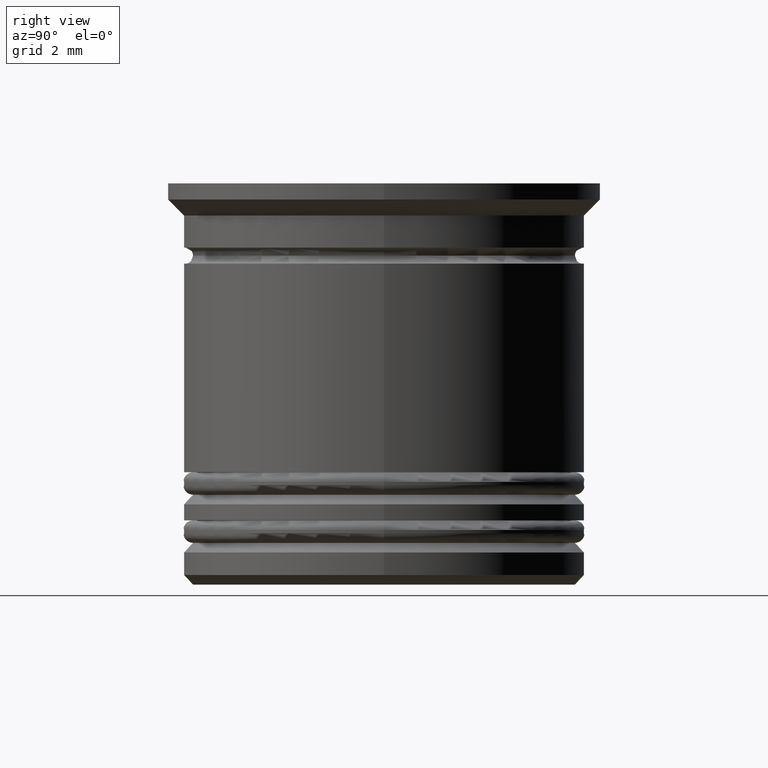
[diagram: clean part render]
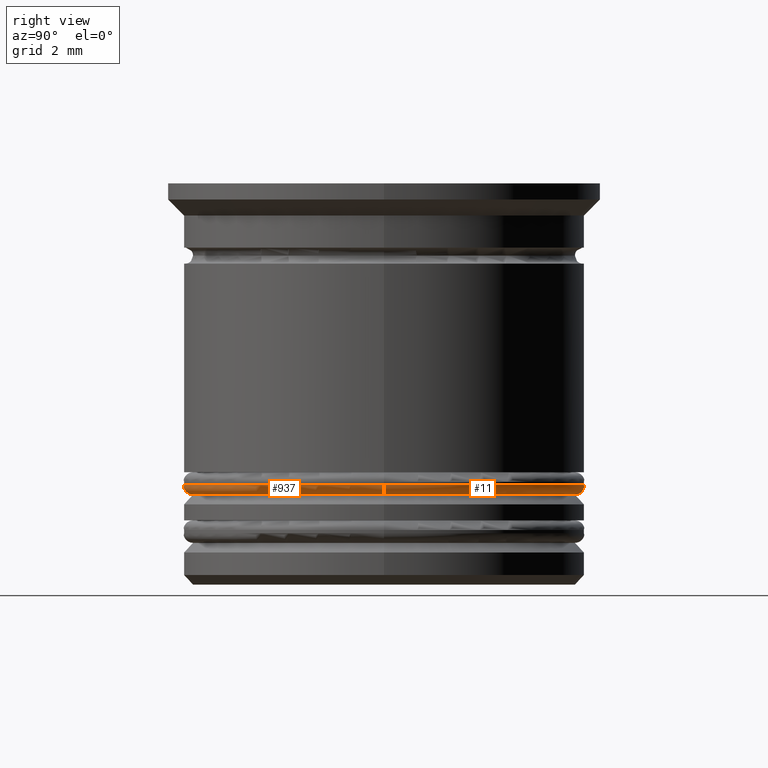
[diagram: same view with one multi-face feature highlighted, each face labeled with its STEP entity id]
A machine part, right view. The highlighted faces form ONE feature: a constant-radius fillet chain: 2 tangent blend faces with common blend radius 0.3 mm. The faces share edges in the B-rep.
Their STEP definitions:
[1] entity #937 (Torus):
#81 = AXIS2_PLACEMENT_3D ( 'NONE', #776, #933, #150 ) ;
#150 = DIRECTION ( 'NONE',  ( 0.000000000000000000, 0.000000000000000000, -1.000000000000000000 ) ) ;
#284 = CARTESIAN_POINT ( 'NONE',  ( 0.000000000000000000, 0.000000000000000000, -9.700000000000006395 ) ) ;
#290 = EDGE_CURVE ( 'NONE', #1875, #1750, #544, .T. ) ;
#307 = DIRECTION ( 'NONE',  ( -1.000000000000000000, 1.224646799147353207E-16, 0.000000000000000000 ) ) ;
#360 = CIRCLE ( 'NONE', #81, 0.2999999999999999334 ) ;
#417 = ORIENTED_EDGE ( 'NONE', *, *, #1360, .F. ) ;
#429 = CARTESIAN_POINT ( 'NONE',  ( -5.950000000000000178, 7.470345474798855279E-16, -9.700000000000006395 ) ) ;
#457 = AXIS2_PLACEMENT_3D ( 'NONE', #284, #1670, #1701 ) ;
#481 = CIRCLE ( 'NONE', #518, 6.250000000000000000 ) ;
#518 = AXIS2_PLACEMENT_3D ( 'NONE', #735, #565, #1339 ) ;
#544 = CIRCLE ( 'NONE', #1344, 0.2999999999999999334 ) ;
#565 = DIRECTION ( 'NONE',  ( 0.000000000000000000, 0.000000000000000000, 1.000000000000000000 ) ) ;
#625 = CARTESIAN_POINT ( 'NONE',  ( 0.000000000000000000, 0.000000000000000000, -9.400000000000009237 ) ) ;
#665 = VERTEX_POINT ( 'NONE', #1457 ) ;
#735 = CARTESIAN_POINT ( 'NONE',  ( 0.000000000000000000, 0.000000000000000000, -9.400000000000009237 ) ) ;
#751 = DIRECTION ( 'NONE',  ( 1.224646799147353207E-16, 1.000000000000000000, -0.000000000000000000 ) ) ;
#776 = CARTESIAN_POINT ( 'NONE',  ( 5.950000000000000178, 0.000000000000000000, -9.400000000000009237 ) ) ;
#916 = EDGE_CURVE ( 'NONE', #1750, #1010, #481, .T. ) ;
#933 = DIRECTION ( 'NONE',  ( 0.000000000000000000, -1.000000000000000000, 0.000000000000000000 ) ) ;
#937 = ADVANCED_FACE ( 'NONE', ( #1661 ), #1874, .T. ) ;
#941 = DIRECTION ( 'NONE',  ( 0.000000000000000000, 0.000000000000000000, 1.000000000000000000 ) ) ;
#1010 = VERTEX_POINT ( 'NONE', #1878 ) ;
#1081 = ORIENTED_EDGE ( 'NONE', *, *, #916, .F. ) ;
#1091 = DIRECTION ( 'NONE',  ( 1.000000000000000000, 0.000000000000000000, 0.000000000000000000 ) ) ;
#1155 = EDGE_LOOP ( 'NONE', ( #1859, #417, #1730, #1081 ) ) ;
#1339 = DIRECTION ( 'NONE',  ( 1.000000000000000000, 0.000000000000000000, 0.000000000000000000 ) ) ;
#1344 = AXIS2_PLACEMENT_3D ( 'NONE', #1976, #751, #307 ) ;
#1360 = EDGE_CURVE ( 'NONE', #665, #1875, #1583, .T. ) ;
#1410 = EDGE_CURVE ( 'NONE', #665, #1010, #360, .T. ) ;
#1457 = CARTESIAN_POINT ( 'NONE',  ( 5.950000000000000178, 0.000000000000000000, -9.700000000000006395 ) ) ;
#1583 = CIRCLE ( 'NONE', #457, 5.950000000000000178 ) ;
#1661 = FACE_OUTER_BOUND ( 'NONE', #1155, .T. ) ;
#1670 = DIRECTION ( 'NONE',  ( -0.000000000000000000, -0.000000000000000000, -1.000000000000000000 ) ) ;
#1680 = AXIS2_PLACEMENT_3D ( 'NONE', #625, #941, #1091 ) ;
#1701 = DIRECTION ( 'NONE',  ( 1.000000000000000000, 0.000000000000000000, 0.000000000000000000 ) ) ;
#1730 = ORIENTED_EDGE ( 'NONE', *, *, #1410, .T. ) ;
#1750 = VERTEX_POINT ( 'NONE', #1802 ) ;
#1802 = CARTESIAN_POINT ( 'NONE',  ( -6.250000000000000000, 7.654042494670957606E-16, -9.400000000000009237 ) ) ;
#1859 = ORIENTED_EDGE ( 'NONE', *, *, #290, .F. ) ;
#1874 = TOROIDAL_SURFACE ( 'NONE', #1680, 5.950000000000000178, 0.2999999999999999889 ) ;
#1875 = VERTEX_POINT ( 'NONE', #429 ) ;
#1878 = CARTESIAN_POINT ( 'NONE',  ( 6.250000000000000000, 0.000000000000000000, -9.400000000000009237 ) ) ;
#1976 = CARTESIAN_POINT ( 'NONE',  ( -5.950000000000000178, 7.286648454926751965E-16, -9.400000000000009237 ) ) ;
[2] entity #11 (Torus):
#11 = ADVANCED_FACE ( 'NONE', ( #1979 ), #1572, .T. ) ;
#66 = ORIENTED_EDGE ( 'NONE', *, *, #290, .T. ) ;
#81 = AXIS2_PLACEMENT_3D ( 'NONE', #776, #933, #150 ) ;
#150 = DIRECTION ( 'NONE',  ( 0.000000000000000000, 0.000000000000000000, -1.000000000000000000 ) ) ;
#153 = DIRECTION ( 'NONE',  ( 1.000000000000000000, 0.000000000000000000, 0.000000000000000000 ) ) ;
#290 = EDGE_CURVE ( 'NONE', #1875, #1750, #544, .T. ) ;
#307 = DIRECTION ( 'NONE',  ( -1.000000000000000000, 1.224646799147353207E-16, 0.000000000000000000 ) ) ;
#310 = DIRECTION ( 'NONE',  ( -0.000000000000000000, -0.000000000000000000, -1.000000000000000000 ) ) ;
#360 = CIRCLE ( 'NONE', #81, 0.2999999999999999334 ) ;
#398 = DIRECTION ( 'NONE',  ( 0.000000000000000000, 0.000000000000000000, 1.000000000000000000 ) ) ;
#429 = CARTESIAN_POINT ( 'NONE',  ( -5.950000000000000178, 7.470345474798855279E-16, -9.700000000000006395 ) ) ;
#450 = CIRCLE ( 'NONE', #1712, 5.950000000000000178 ) ;
#544 = CIRCLE ( 'NONE', #1344, 0.2999999999999999334 ) ;
#665 = VERTEX_POINT ( 'NONE', #1457 ) ;
#687 = EDGE_CURVE ( 'NONE', #1010, #1750, #1743, .T. ) ;
#704 = DIRECTION ( 'NONE',  ( 1.000000000000000000, 0.000000000000000000, 0.000000000000000000 ) ) ;
#751 = DIRECTION ( 'NONE',  ( 1.224646799147353207E-16, 1.000000000000000000, -0.000000000000000000 ) ) ;
#776 = CARTESIAN_POINT ( 'NONE',  ( 5.950000000000000178, 0.000000000000000000, -9.400000000000009237 ) ) ;
#908 = CARTESIAN_POINT ( 'NONE',  ( 0.000000000000000000, 0.000000000000000000, -9.400000000000009237 ) ) ;
#927 = DIRECTION ( 'NONE',  ( 0.000000000000000000, 0.000000000000000000, 1.000000000000000000 ) ) ;
#933 = DIRECTION ( 'NONE',  ( 0.000000000000000000, -1.000000000000000000, 0.000000000000000000 ) ) ;
#1010 = VERTEX_POINT ( 'NONE', #1878 ) ;
#1042 = DIRECTION ( 'NONE',  ( 1.000000000000000000, 0.000000000000000000, 0.000000000000000000 ) ) ;
#1051 = EDGE_LOOP ( 'NONE', ( #1127, #66, #1059, #1648 ) ) ;
#1059 = ORIENTED_EDGE ( 'NONE', *, *, #687, .F. ) ;
#1127 = ORIENTED_EDGE ( 'NONE', *, *, #1935, .F. ) ;
#1344 = AXIS2_PLACEMENT_3D ( 'NONE', #1976, #751, #307 ) ;
#1410 = EDGE_CURVE ( 'NONE', #665, #1010, #360, .T. ) ;
#1457 = CARTESIAN_POINT ( 'NONE',  ( 5.950000000000000178, 0.000000000000000000, -9.700000000000006395 ) ) ;
#1506 = AXIS2_PLACEMENT_3D ( 'NONE', #908, #927, #153 ) ;
#1572 = TOROIDAL_SURFACE ( 'NONE', #1506, 5.950000000000000178, 0.2999999999999999889 ) ;
#1648 = ORIENTED_EDGE ( 'NONE', *, *, #1410, .F. ) ;
#1666 = CARTESIAN_POINT ( 'NONE',  ( 0.000000000000000000, 0.000000000000000000, -9.700000000000006395 ) ) ;
#1712 = AXIS2_PLACEMENT_3D ( 'NONE', #1666, #310, #1042 ) ;
#1743 = CIRCLE ( 'NONE', #1873, 6.250000000000000000 ) ;
#1750 = VERTEX_POINT ( 'NONE', #1802 ) ;
#1802 = CARTESIAN_POINT ( 'NONE',  ( -6.250000000000000000, 7.654042494670957606E-16, -9.400000000000009237 ) ) ;
#1873 = AXIS2_PLACEMENT_3D ( 'NONE', #1903, #398, #704 ) ;
#1875 = VERTEX_POINT ( 'NONE', #429 ) ;
#1878 = CARTESIAN_POINT ( 'NONE',  ( 6.250000000000000000, 0.000000000000000000, -9.400000000000009237 ) ) ;
#1903 = CARTESIAN_POINT ( 'NONE',  ( 0.000000000000000000, 0.000000000000000000, -9.400000000000009237 ) ) ;
#1935 = EDGE_CURVE ( 'NONE', #1875, #665, #450, .T. ) ;
#1976 = CARTESIAN_POINT ( 'NONE',  ( -5.950000000000000178, 7.286648454926751965E-16, -9.400000000000009237 ) ) ;
#1979 = FACE_OUTER_BOUND ( 'NONE', #1051, .T. ) ;